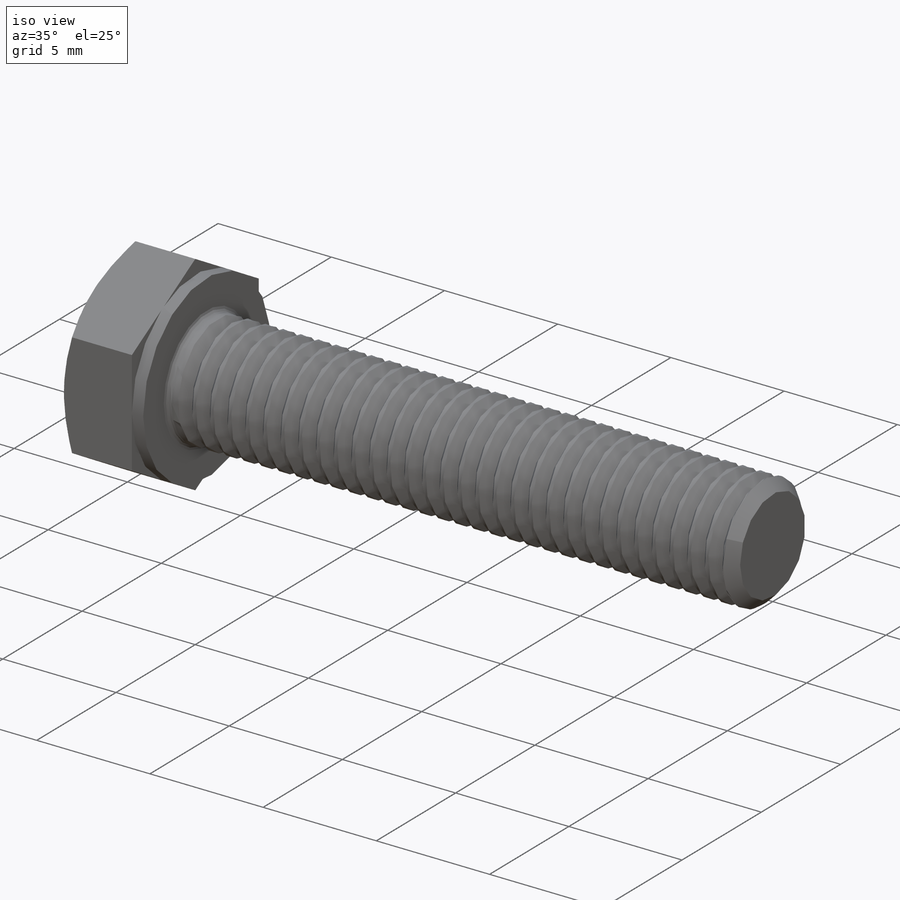
[diagram: iso view]
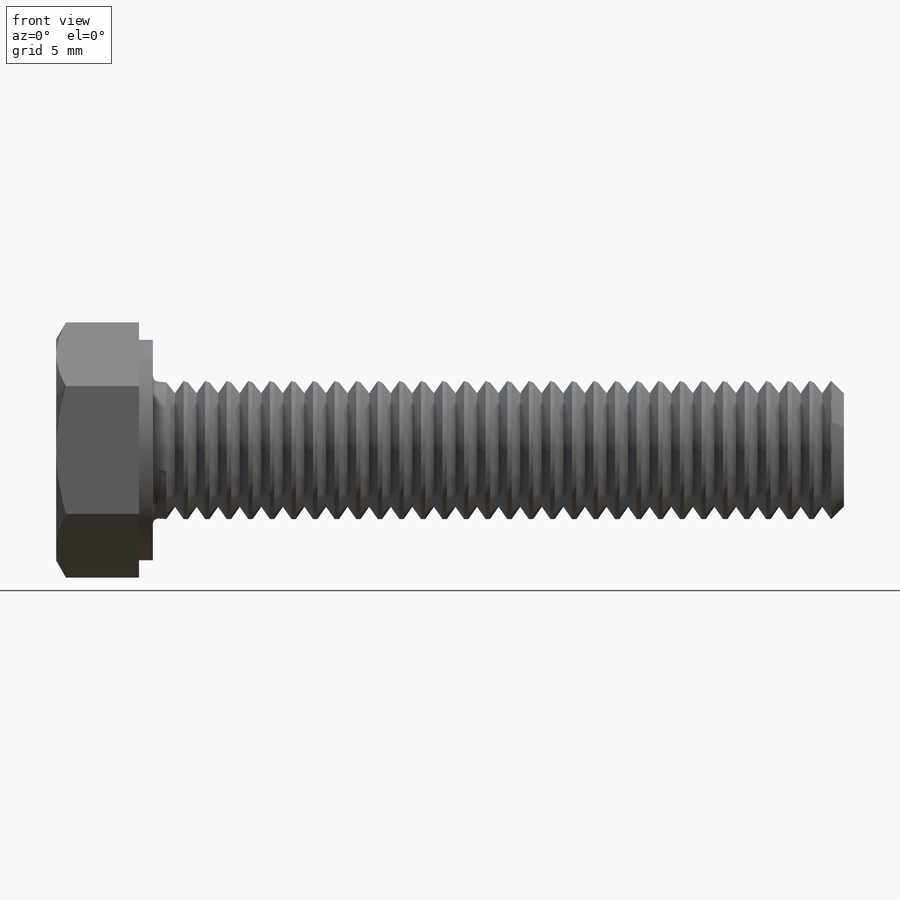
[diagram: front view]
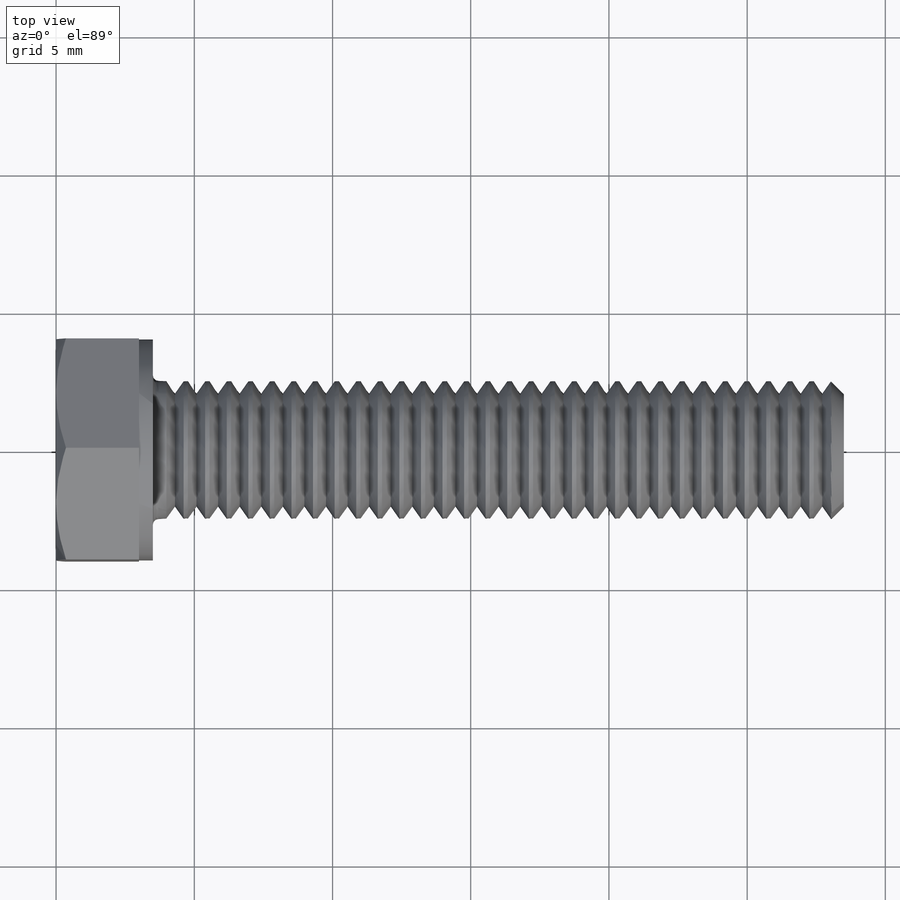
[diagram: top view]
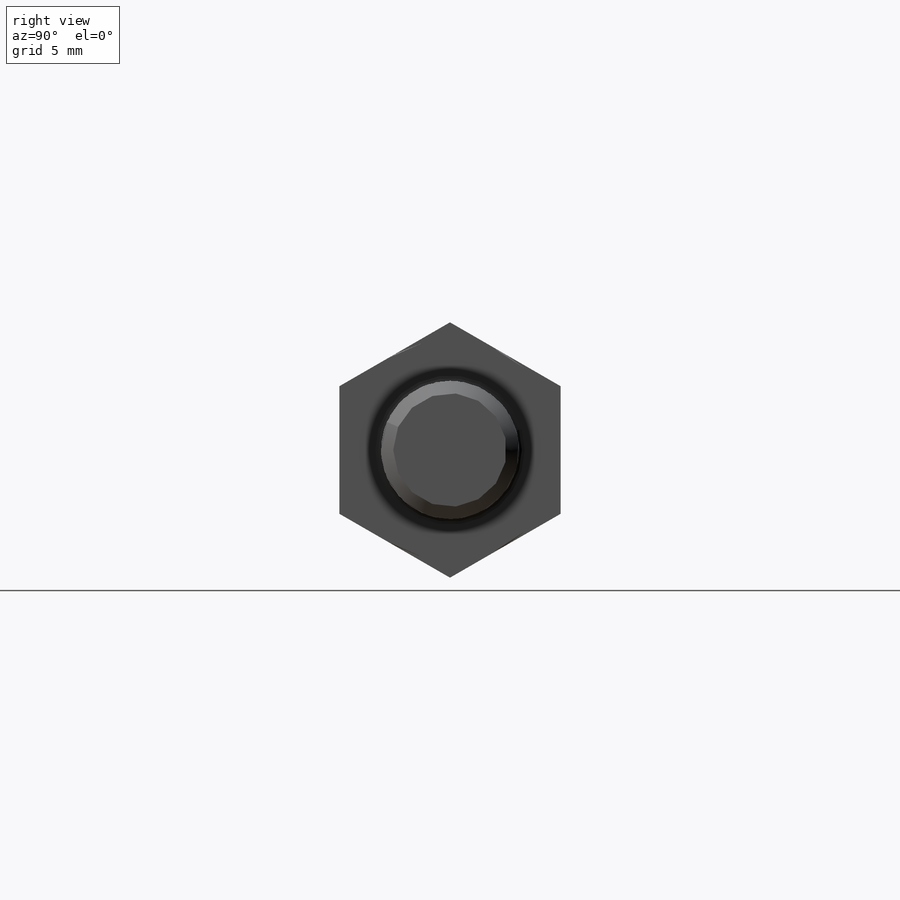
[diagram: right view]
SOLIDWORKS PART (.sldprt)
format: sldprt  version: not decoded by parser v0  size: 282,624 bytes
history: native  units: mm
features: sketch x5, plane x3, cut_revolve x3, material x1, extrude x1, revolve x1, thread x1, fillet x1, pattern_linear x1 (+12 scaffold rows collapsed; 1 parser-record rows omitted)
feature tree (30):
  parser-record x1  (decoder bookkeeping rows leaked as tree rows — omitted from the tree; the rows remain in map.json)
  scaffold x12  (default folders/planes/origin — collapsed)
  material  "Material <not specified>"
  plane  "Plane1"
  plane  "Plane2"
  plane  "Plane3"
  sketch  "Sketch1"  dims[c1.Width_flats=8.0mm c1.D2=~28.740898mm c2.D2=120.0deg c2.D3=4.0mm c2.D4=4.0mm c2.D5=4.0mm]
  extrude  "BaseHead"  Depth=3.5mm Head_ht=3.5mm
  sketch  "BodySke"  dims[Length=25.0mm D1=88.646mm Body_ch_ang=45.0deg Diameter=5.0mm Minor_dia=4.11mm Advance=0.8mm Thread_nom=25.0mm Thread_lim=74.0918mm]
  revolve  "BaseBody"  [1 undecoded]
  thread  "ThreadCosmetic"  Diameter=24.2mm Thread_length=24.2mm Thread_minor=4.11mm  [1 undecoded]
  fillet  "HeadFillet"  Radius=0.2mm Fillet_radius=0.2mm
  sketch  "Sketch3"  dims[c1.D1=4.0mm c1.D2=5.0mm c1.D3=12.7mm c1.D4=~10.11241mm c1.Head_ch_ang=60.0deg c2.D4=~7.048769mm c2.D3=10.0mm c3.D4=5.0mm c3.D5=~11.302462mm c3.Head_ch_ang=30.0deg]
  cut_revolve  "HeadChamfer"  Angle=360deg
  sketch  "Sketch4"  dims[c1.D1=18.0mm c1.D2=10.0mm c1.Bearing_ht=0.5mm c2.D1=8.0mm]
  cut_revolve  "BearingFace"  Angle=360deg
  sketch  "ThdSchSke"  dims[c1.Thread_minor=~1.03886mm c1.Diameter=~1.413535mm c1.Start=~0.988134mm c1.D4=~4.446753mm c1.Vee=60.0deg c2.Thread_minor=~1.03886mm c2.Start=~2.540025mm c2.D1=~0.108159mm c2.D2=~0.108159mm c3.D1=~0.216319mm c3.SideAngle=55.0deg c3.D2=~0.216319mm c3.VeeAngle=70.0deg c3.Thread_minor=4.11mm c3.Overcut=6.25mm c3.Diameter=5.0mm c3.D6=~8.326268mm c4.D1=~8.326268mm c5.D1=90.0deg c5.Start=63.5mm c6.Start=140.4874mm c7.Start=4.3mm]
  cut_revolve  "ThreadSchematic"  Angle=360deg
  pattern_linear  "ThdSchPat"  Count1=31 Count2=1 Spacing1=0.780645mm Spacing2=50mm Num_threads=31 Advance=0.780645mm ConfigurationName=0mm CopiedFlag=1 PartNumberID=0mm
decode coverage: 12 of 13 modeling features carry decoded parameters
note: ~ marks probable driven/reference dimensions
note: 2 parameter values undecoded
note: suppression state not decoded; provenance and decode notes live in map.json
